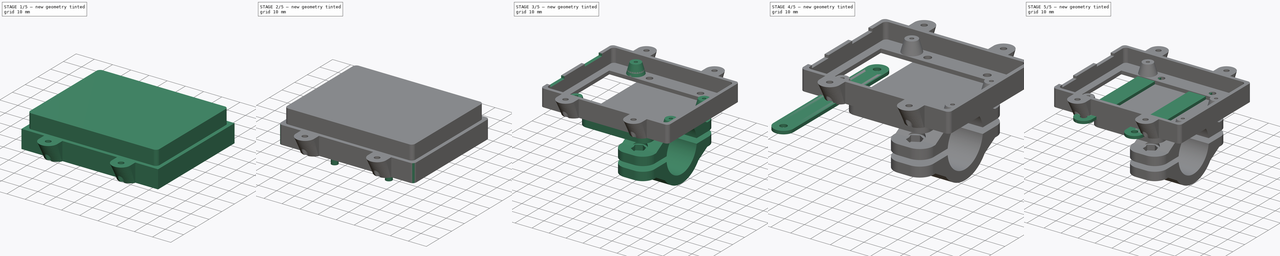
[diagram: build sequence overview — one tinted view per stage of 5, left to right]
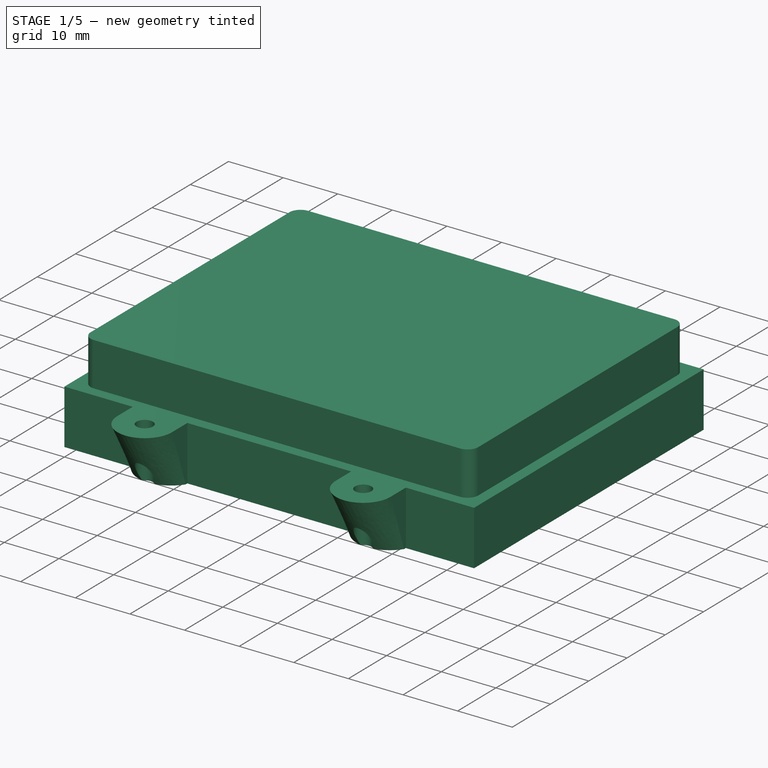
[diagram: stage 1 of 5 — iso view after this stage's code; geometry added in this stage tinted green]
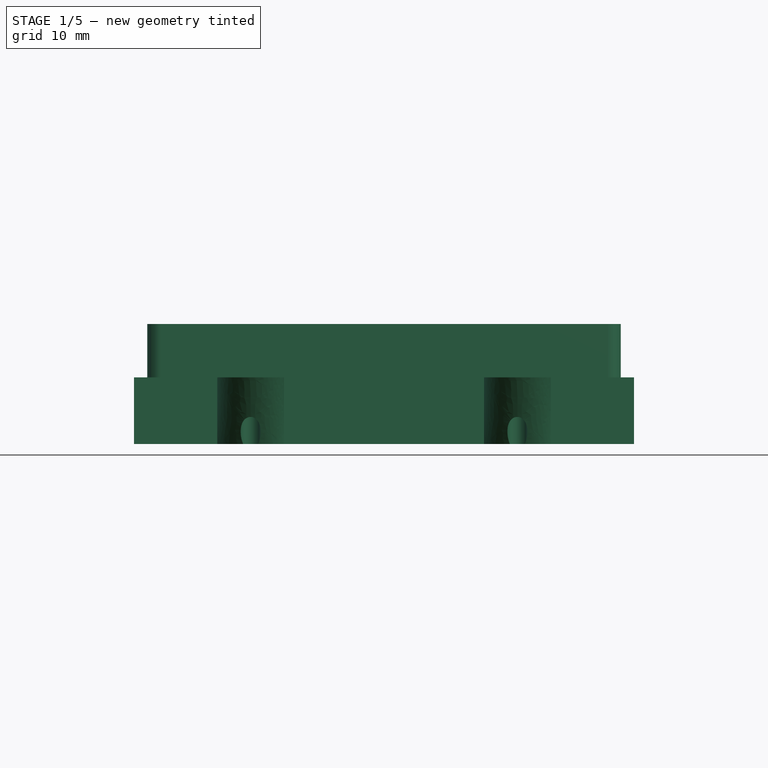
[diagram: stage 1 of 5 — front view after this stage's code; geometry added in this stage tinted green]
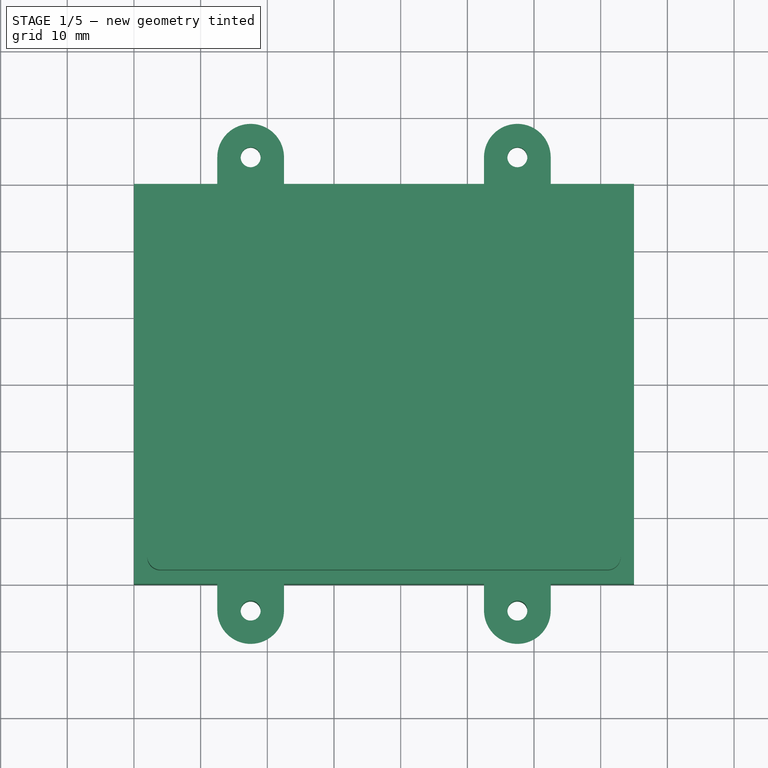
[diagram: stage 1 of 5 — top view after this stage's code; geometry added in this stage tinted green]
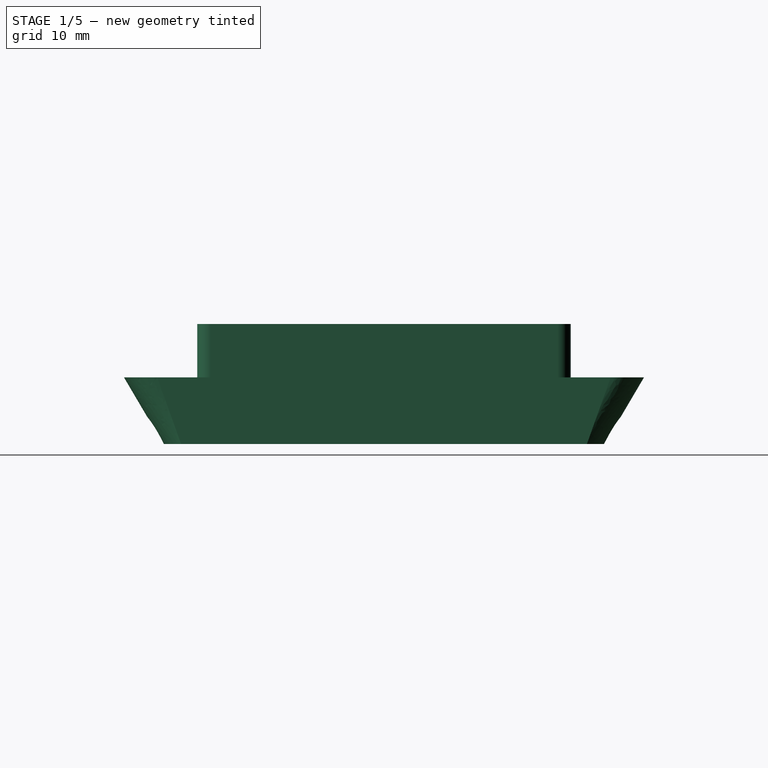
[diagram: stage 1 of 5 — right view after this stage's code; geometry added in this stage tinted green]
FCSTD DOCUMENT  (FreeCAD 0.18.4R)
Label: arduino_box_for_25mm_pipe
License: All rights reserved
LicenseURL: http://en.wikipedia.org/wiki/All_rights_reserved
objects: Part::Cylinder×12, Part::Box×8, Part::FeaturePython×8, Part::Fuse×7, Part::Cut×7, Part::MultiFuse×5, Part::Fillet×3, PartDesign::Body×3, Part::Feature×2, Sketcher::SketchObject×2, PartDesign::FeatureBase×2, Spreadsheet::Sheet×1, Part::Compound×1, Part::Cone×1, PartDesign::AdditiveLoft×1, Part::Mirroring×1
note: 64 computed .brp shape members not serialized (recipe doc carries the construction recipe); baked Part::Feature solids carry a one-line shape summary decoded from their .brp

FEATURE [Part::Box] cube
  AttacherType = Attacher::AttachEngine3D
  Height = 10
  Length = 75
  Width = 60
FEATURE [Part::Box] cube001
  AttacherType = Attacher::AttachEngine3D
  Height = 16
  Length = 71
  Placement = pos=(2,2,2) rot=(0,0,1;0rad)
  Width = 56
FEATURE [Part::Fillet] Fillet002
  Base = -> cube001
  Edges = 4 edges r=2: [Edge1,Edge3,Edge5,Edge7]
FEATURE [Sketcher::SketchObject] Sketch
  AttachmentOffset = pos=(0,0,10) rot=(0,0,1;0rad)
  MapMode = 5
  Placement = pos=(0,0,10) rot=(0,0,1;0rad)
  Support = -> [XY_Plane001]
  sketch-geometry (4):
    g0: ArcOfCircle CenterX=-2 CenterY=-2.11982e-11 CenterZ=0 NormalX=0 NormalY=0 NormalZ=1 AngleXU=0 Radius=5 StartAngle=1.5708 EndAngle=4.71239
    g1: LineSegment StartX=-2 StartY=5 StartZ=0 EndX=2 EndY=5 EndZ=0
    g2: LineSegment StartX=-2 StartY=-5 StartZ=0 EndX=2 EndY=-5 EndZ=0
    g3: LineSegment StartX=2 StartY=5 StartZ=0 EndX=2 EndY=-5 EndZ=0
  constraints (9):
    c: Horizontal(g2)
    c: Coincident(g3,g1)
    c: Coincident(g3,g2)
    c: Tangent(g1,g0) = 1.5708
    c: Tangent(g2,g0) = -1.5708
    c: Symmetric(g1,g2,g-1)
    c: Symmetric(g0,g1,g-2)
    c: DistanceY(g3,g3) = 10
    c: DistanceX(g1,g1) = 4
FEATURE [Sketcher::SketchObject] Sketch001
  MapMode = 5
  Support = -> [XY_Plane001]
  sketch-geometry (4):
    g0: ArcOfCircle CenterX=4.90004 CenterY=-4e-16 CenterZ=0 NormalX=0 NormalY=0 NormalZ=1 AngleXU=0 Radius=6.00815 StartAngle=2.15852 EndAngle=4.12466
    g1: LineSegment StartX=2 StartY=5 StartZ=0 EndX=2 EndY=-5 EndZ=0
    g2: LineSegment StartX=2 StartY=-5 StartZ=0 EndX=1.5687 EndY=-5 EndZ=0
    g3: LineSegment StartX=2 StartY=5 StartZ=0 EndX=1.5687 EndY=5 EndZ=0
  constraints (9):
    c: Symmetric(g1,g1,g-1)
    c: DistanceY(g1,g1) = 10
    c: DistanceX(g-1,g1) = 2
    c: Coincident(g2,g1)
    c: Coincident(g3,g1)
    c: Symmetric(g3,g2,g-1)
    c: Horizontal(g3)
    c: Coincident(g0,g2)
    c: Coincident(g0,g3)
FEATURE [PartDesign::AdditiveLoft] AdditiveLoft
  Closed = false
  Profile = -> Sketch
  Ruled = false
  Sections = -> [Sketch001]
FEATURE [PartDesign::Body] Body001  label="side ear"
  Group = -> [Sketch,Sketch001,AdditiveLoft]
  Origin = -> Origin001
  Tip = -> AdditiveLoft
FEATURE [PartDesign::FeatureBase] Clone001
  BaseFeature = -> Body001
FEATURE [PartDesign::Body] Body002  label="side ear clone"
  Group = -> [Clone001]
  Origin = -> Origin002
  Placement = pos=(0,0,0) rot=(0,0,-1;4.71239rad)
  Tip = -> Clone001
FEATURE [Part::Cylinder] Cylinder002  label="Cylinder"
  Angle = 360
  AttacherType = Attacher::AttachEngine3D
  Height = 20
  Placement = pos=(0,-2,0) rot=(0,0,1;0rad)
  Radius = 1.5
FEATURE [Part::Cut] Cut023015002
  Base = -> Body002
  Tool = -> Cylinder002
FEATURE [Part::FeaturePython] Array002  label="side ear clone array"  # Draft array (typed FeaturePython)
  Angle = 360
  ArrayType = 0
  Axis = (0,0,1)
  Base = -> Cut023015002
  Center = (0,0,0)
  Fuse = false
  IntervalAxis = (0,0,0)
  IntervalX = (40,0,0)
  IntervalY = (0,1,0)
  IntervalZ = (0,0,1)
  NumberPolar = 1
  NumberX = 2
  NumberY = 1
  NumberZ = 1
  Placement = pos=(17.5,-2,0) rot=(0,0,1;0rad)
FEATURE [Part::Mirroring] Part__Mirroring  label="side ear clone array (Mirror #1)"
  Base = (0,30,0)
  Normal = (0,1,0)
  Source = -> Array002
FEATURE [Part::MultiFuse] Fusion002  label="ear fusion"
  Shapes = -> [Part__Mirroring,Array002]
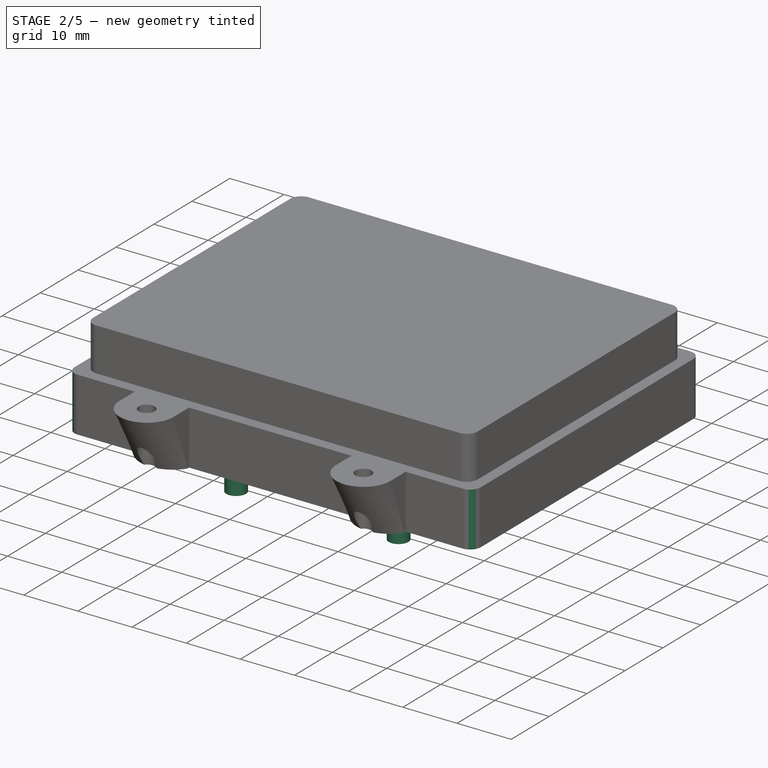
[diagram: stage 2 of 5 — iso view after this stage's code; geometry added in this stage tinted green]
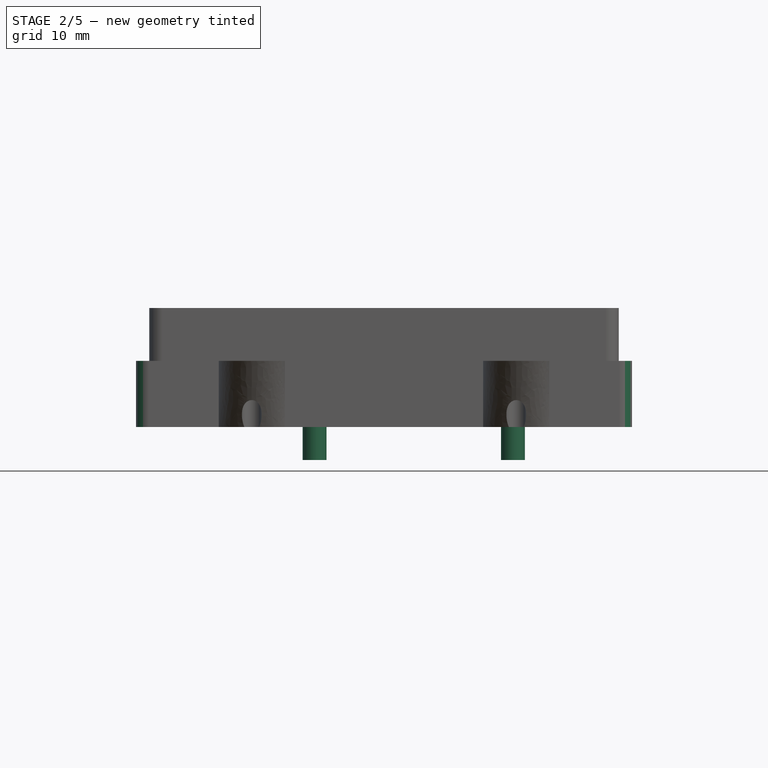
[diagram: stage 2 of 5 — front view after this stage's code; geometry added in this stage tinted green]
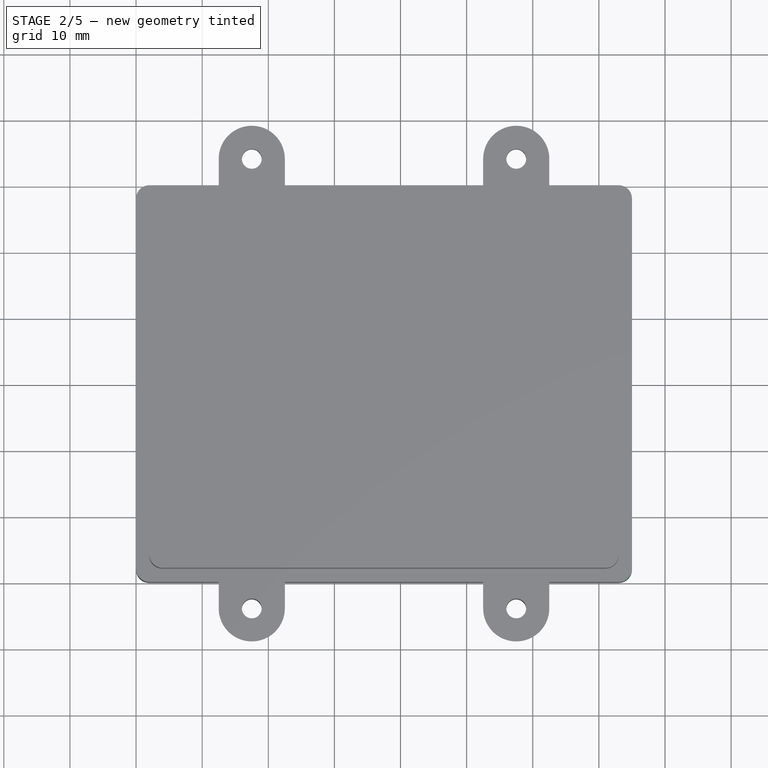
[diagram: stage 2 of 5 — top view after this stage's code; geometry added in this stage tinted green]
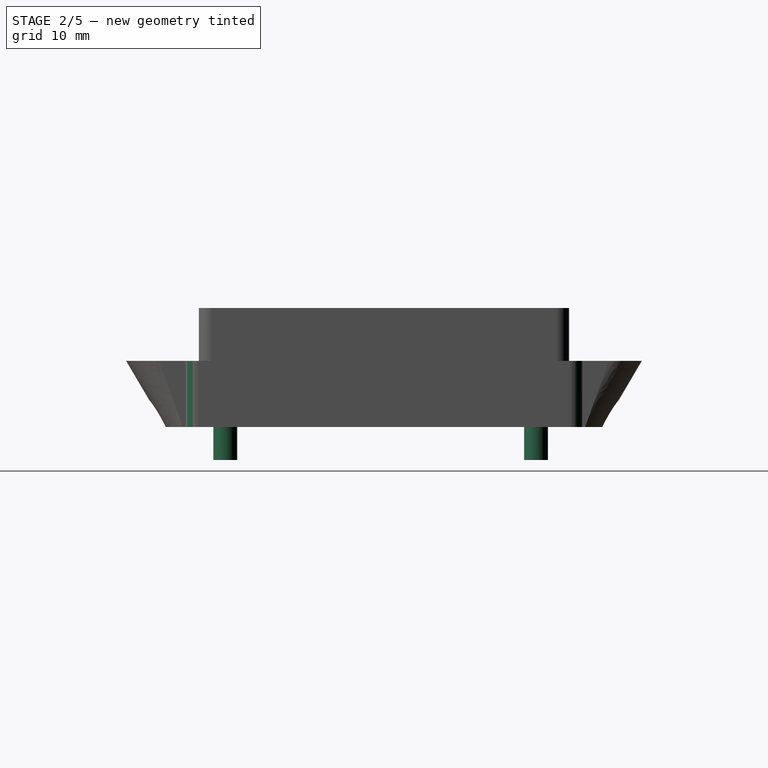
[diagram: stage 2 of 5 — right view after this stage's code; geometry added in this stage tinted green]
FEATURE [Part::Box] cube006
  AttacherType = Attacher::AttachEngine3D
  Height = 17
  Length = 58
  Placement = pos=(6.1,10.1,0) rot=(0,0,1;0rad)
  Width = 39
FEATURE [Part::Feature] Solid  label="Arduino"
  Placement = pos=(29.2,-5.1,40) rot=(0,0,1;4.71239rad)
  shape: large baked B-rep (35 MB .brp); summary skipped
FEATURE [Part::Feature] Cut023015001  label="tube block cut002"
  Placement = pos=(20,30,-14) rot=(0.57735,0.57735,0.57735;2.0944rad)
  shape: bbox 20 x 59.4 x 35.4 mm, 58 faces, 2 solids (baked)
FEATURE [Part::Box] Box  label="tube block to box plate"
  AttacherType = Attacher::AttachEngine3D
  Height = 4
  Length = 40
  Width = 59
FEATURE [Part::Fillet] Fillet  label="tube block to box plate fillet"
  Base = -> Box
  Edges = 4 edges r=5: [Edge1,Edge3,Edge5,Edge7]
FEATURE [Part::Cylinder] Cylinder  label="screw hole"
  Angle = 360
  AttacherType = Attacher::AttachEngine3D
  Height = 20
  Radius = 1.5
FEATURE [Part::FeaturePython] Array  label="screw hole array"  # Draft array (typed FeaturePython)
  Angle = 360
  ArrayType = 0
  Axis = (0,0,1)
  Base = -> Cylinder
  Center = (0,0,0)
  Fuse = false
  IntervalAxis = (0,0,0)
  IntervalX = (30,0,0)
  IntervalY = (0,47,0)
  IntervalZ = (0,0,1)
  NumberPolar = 1
  NumberX = 2
  NumberY = 2
  NumberZ = 1
  Placement = pos=(5,6,-5) rot=(0,0,1;0rad)
  expr: Placement.Base.y = p.box_tube_connector_hole_y_off
  expr: Placement.Base.x = p.box_tube_connector_hole_x_off
  expr: IntervalY.y = p.box_tube_connector_hole_y_dist
  expr: IntervalX.x = p.box_tube_connector_hole_x_dist
FEATURE [Part::Cut] Cut  label="tube block to box plate cut"
  Base = -> Fillet
  Tool = -> Array
FEATURE [Part::Cylinder] Cylinder001  label="screw hole001"
  Angle = 360
  AttacherType = Attacher::AttachEngine3D
  Height = 20
  Radius = 1.8
FEATURE [Part::FeaturePython] Array001  label="screw hole array001"  # Draft array (typed FeaturePython)
  Angle = 360
  ArrayType = 0
  Axis = (0,0,1)
  Base = -> Cylinder001
  Center = (0,0,0)
  Fuse = false
  IntervalAxis = (0,0,0)
  IntervalX = (30,0,0)
  IntervalY = (0,47,0)
  IntervalZ = (0,0,1)
  NumberPolar = 1
  NumberX = 2
  NumberY = 2
  NumberZ = 1
  Placement = pos=(27,6,-5) rot=(0,0,1;0rad)
  expr: Placement.Base.y = p.box_tube_connector_hole_y_off
  expr: Placement.Base.x = p.box_tube_connector_hole_x_off + 22
  expr: IntervalY.y = p.box_tube_connector_hole_y_dist
  expr: IntervalX.x = p.box_tube_connector_hole_x_dist
FEATURE [Part::MultiFuse] Fusion001  label="arduino box extraction fusion"
  Shapes = -> [Array001,cube006]
FEATURE [Part::Fillet] Fillet001
  Base = -> cube
  Edges = 4 edges r=2: [Edge1,Edge3,Edge5,Edge7]
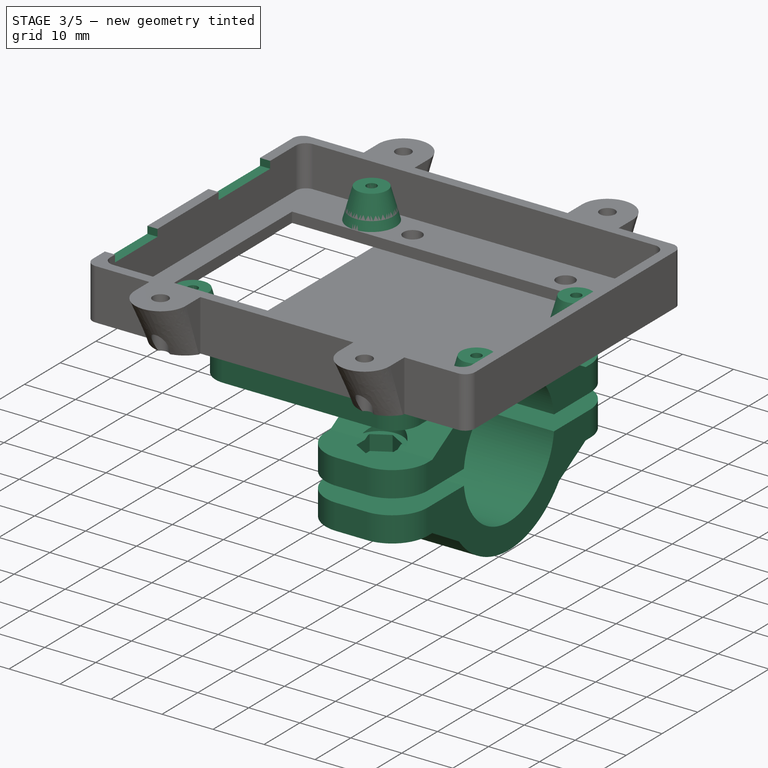
[diagram: stage 3 of 5 — iso view after this stage's code; geometry added in this stage tinted green]
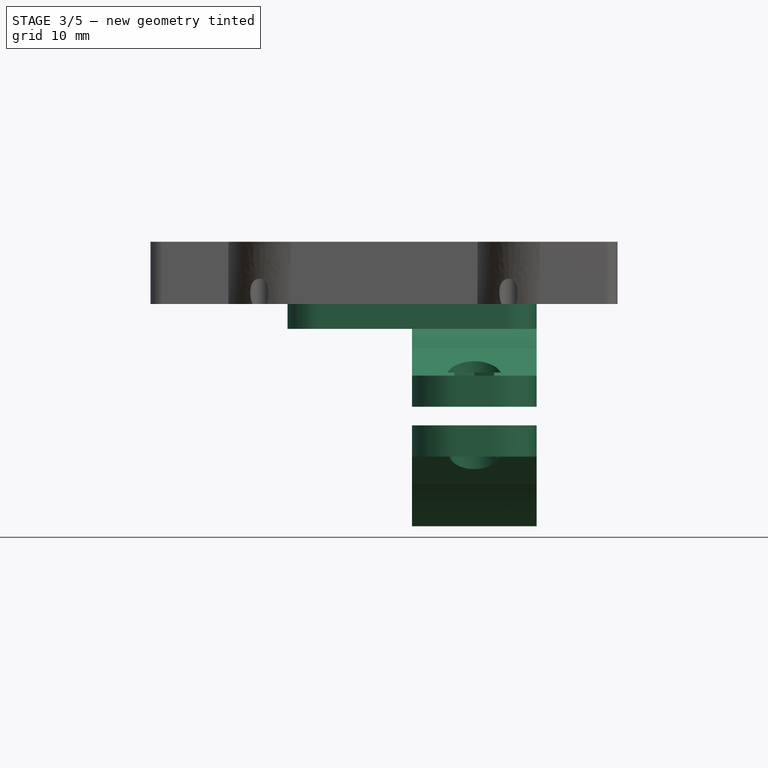
[diagram: stage 3 of 5 — front view after this stage's code; geometry added in this stage tinted green]
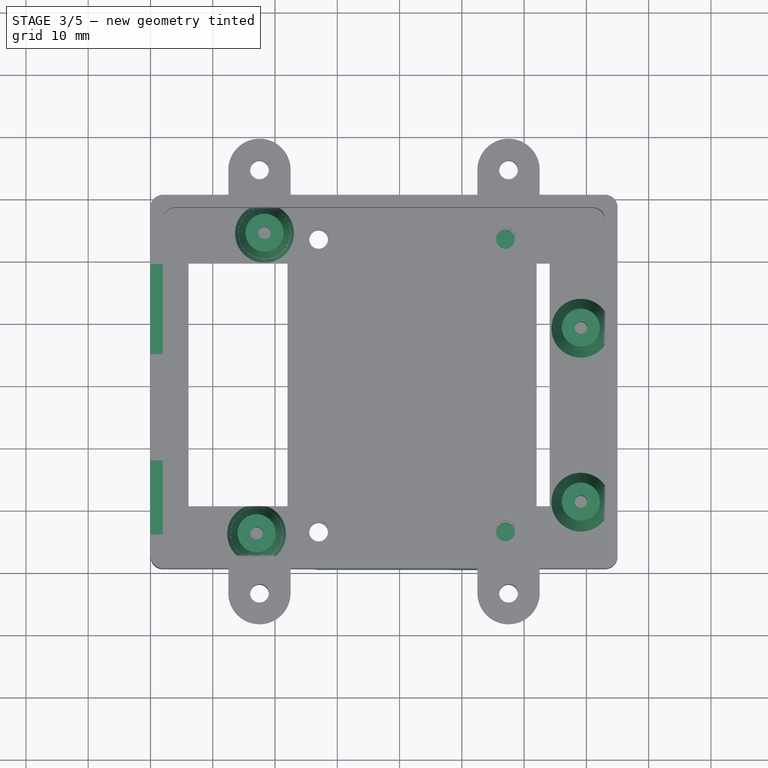
[diagram: stage 3 of 5 — top view after this stage's code; geometry added in this stage tinted green]
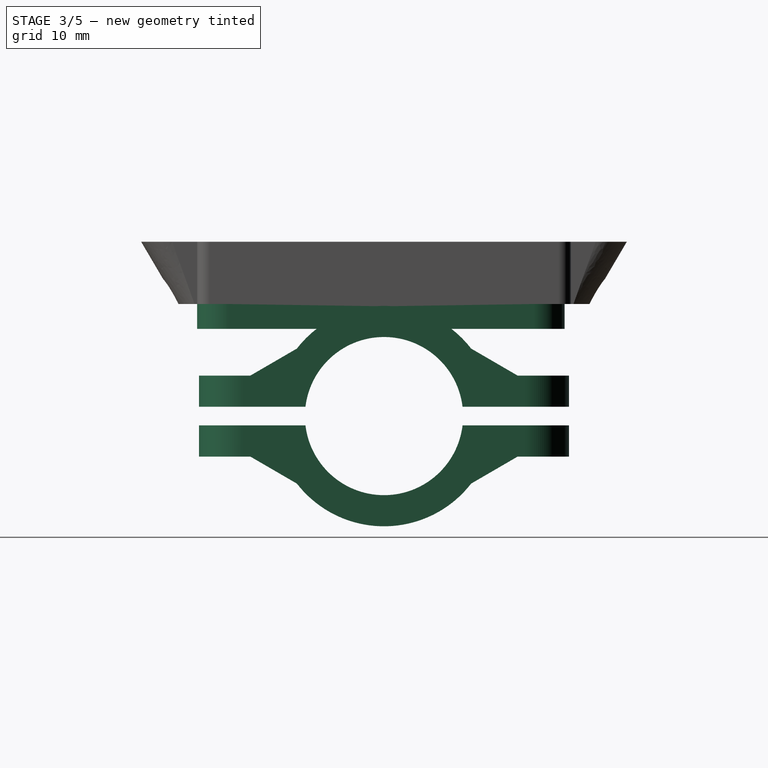
[diagram: stage 3 of 5 — right view after this stage's code; geometry added in this stage tinted green]
FEATURE [Part::Box] cube002
  AttacherType = Attacher::AttachEngine3D
  Height = 15
  Length = 2.6
  Placement = pos=(-0.5,5.4,8.6) rot=(0,0,1;0rad)
  Width = 11.89
FEATURE [Part::Box] cube003
  AttacherType = Attacher::AttachEngine3D
  Height = 15
  Length = 2.6
  Placement = pos=(-0.5,34.4,8.6) rot=(0,0,1;0rad)
  Width = 14.43
FEATURE [Part::Cylinder] cylinder009
  Angle = 360
  AttacherType = Attacher::AttachEngine3D
  Height = 8
  Radius = 1
  expr: Radius = p.hole_r
FEATURE [Spreadsheet::Sheet] Spreadsheet  label="p"
  cells = A1=hole_r; B1(hole_r)=1; A2=box_tube_connector_hole_x_dist; B2(box_tube_connector_hole_x_dist)=30; A3=box_tube_connector_hole_y_dist; B3(box_tube_connector_hole_y_dist)=47; A4=box_tube_connector_hole_y_off; B4(box_tube_connector_hole_y_off)=6; A5=box_tube_connector_hole_x_off; B5(box_tube_connector_hole_x_off)=5
FEATURE [Part::FeaturePython] Point  # WARN: FeaturePython — macro-defined, semantics opaque (R4)
  X = 18.34
  Y = 53.9
  Z = 0
FEATURE [Part::FeaturePython] Point001  # WARN: FeaturePython — macro-defined, semantics opaque (R4)
  X = 17.07
  Y = 5.64
  Z = 0
FEATURE [Part::FeaturePython] Point002  # WARN: FeaturePython — macro-defined, semantics opaque (R4)
  X = 69.14
  Y = 10.72
  Z = 0
FEATURE [Part::FeaturePython] Point003  # WARN: FeaturePython — macro-defined, semantics opaque (R4)
  X = 69.14
  Y = 38.66
  Z = 0
FEATURE [Part::Compound] Compound  label="hole points compound"
  Links = -> [Point002,Point001,Point,Point003]
FEATURE [Part::Cone] Cone
  Angle = 360
  AttacherType = Attacher::AttachEngine3D
  Height = 7
  Radius1 = 5
  Radius2 = 3.05
FEATURE [Part::Cut] difference003  label="hole with stand"
  Base = -> Cone
  Placement = pos=(13.97,2.54,0) rot=(0,0,1;0rad)
  Tool = -> cylinder009
FEATURE [Part::FeaturePython] PointArray  label="hole point array"  # WARN: FeaturePython — macro-defined, semantics opaque (R4)
  Base = -> difference003
  Count = 4
  Placement = pos=(-14,-2.5,1) rot=(0,0,1;0rad)
  PointList = -> Compound
FEATURE [Part::MultiFuse] Fusion  label="tube box connector"
  Placement = pos=(22,0,-4) rot=(0,0,1;0rad)
  Shapes = -> [Cut023015001,Cut]
FEATURE [Part::MultiFuse] union
  Shapes = -> [cube002,cube003,Fillet002]
FEATURE [Part::Cut] difference
  Base = -> Fillet001
  Tool = -> union
FEATURE [Part::MultiFuse] union003
  Shapes = -> [difference,PointArray,Fusion002]
FEATURE [Part::Cut] difference007  label="arduino box cut"
  Base = -> union003
  Tool = -> Fusion001
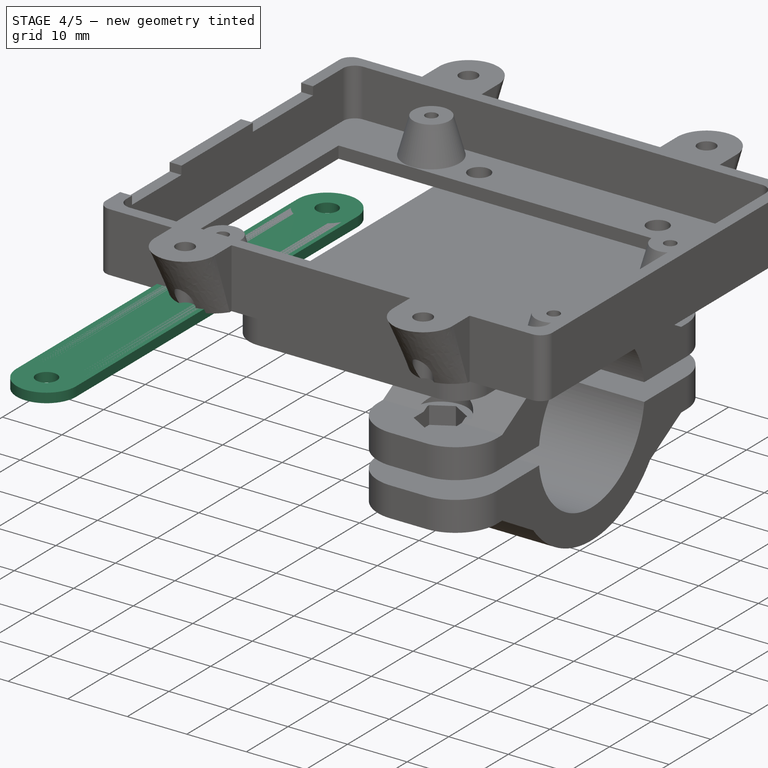
[diagram: stage 4 of 5 — iso view after this stage's code; geometry added in this stage tinted green]
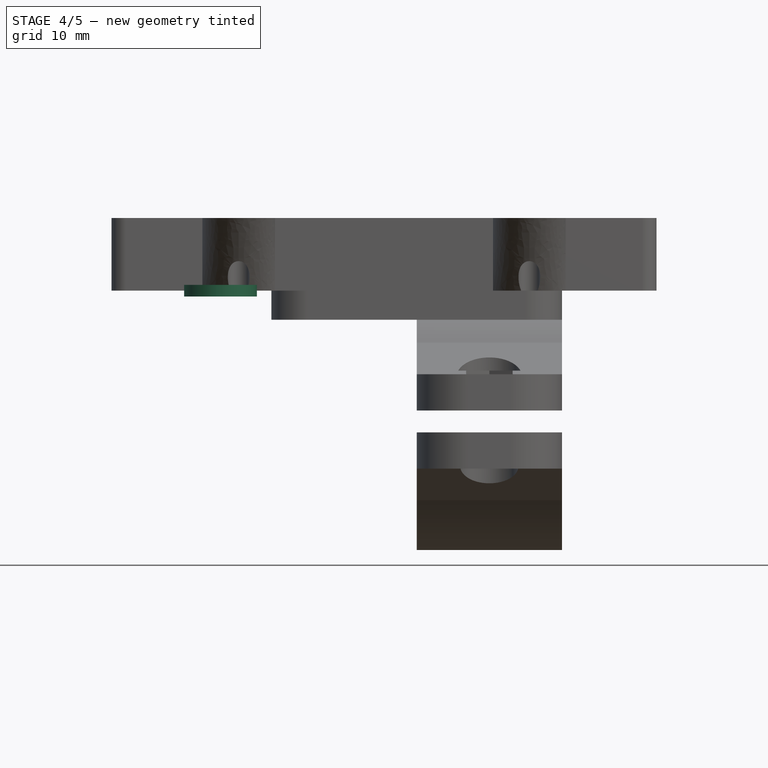
[diagram: stage 4 of 5 — front view after this stage's code; geometry added in this stage tinted green]
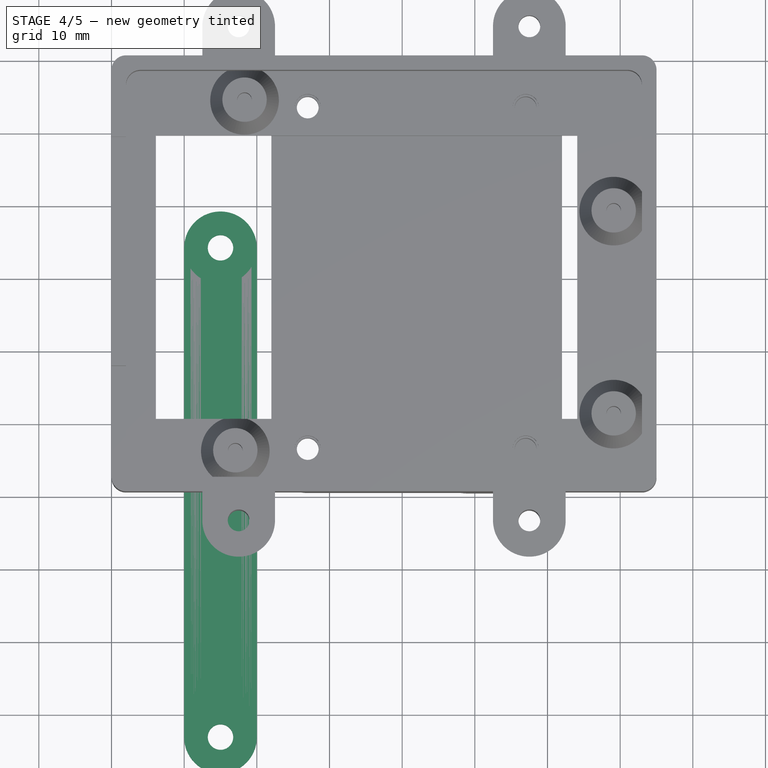
[diagram: stage 4 of 5 — top view after this stage's code; geometry added in this stage tinted green]
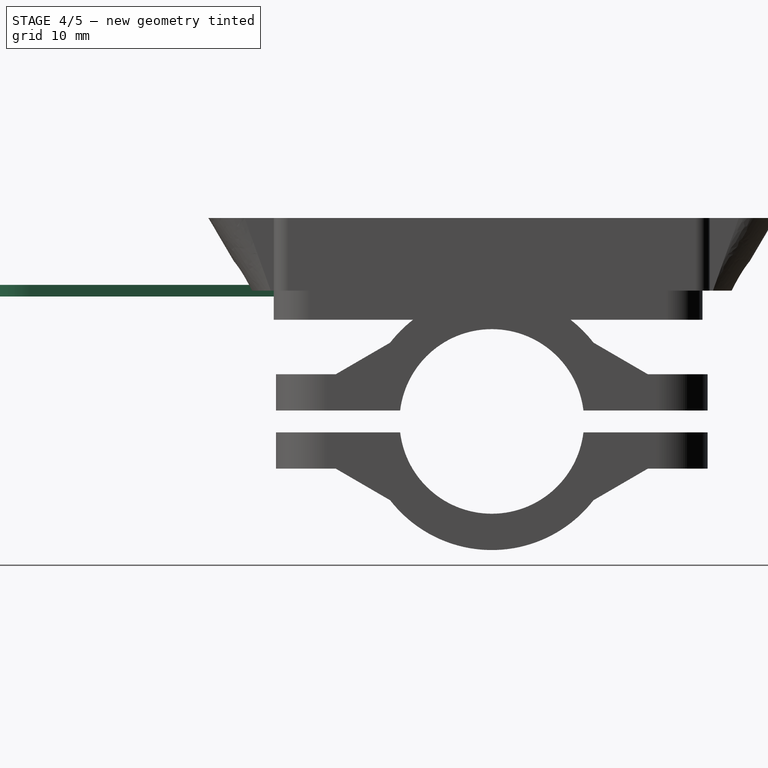
[diagram: stage 4 of 5 — right view after this stage's code; geometry added in this stage tinted green]
FEATURE [Part::Box] cube005
  AttacherType = Attacher::AttachEngine3D
  Height = 1.6
  Length = 10
  Placement = pos=(-5,-33.67,-0.8) rot=(0,0,1;0rad)
  Width = 67.34
FEATURE [Part::Cylinder] cylinder004
  Angle = 360
  AttacherType = Attacher::AttachEngine3D
  Height = 1.6
  Placement = pos=(0,-33.67,-0.8) rot=(0,0,1;0rad)
  Radius = 5
FEATURE [Part::Cylinder] cylinder005
  Angle = 360
  AttacherType = Attacher::AttachEngine3D
  Height = 1.6
  Placement = pos=(0,33.67,-0.8) rot=(0,0,1;0rad)
  Radius = 5
FEATURE [Part::Fuse] Group002
  Base = -> cylinder004
  Tool = -> cylinder005
FEATURE [Part::Fuse] union002
  Base = -> cube005
  Tool = -> Group002
FEATURE [Part::Cylinder] cylinder006
  Angle = 360
  AttacherType = Attacher::AttachEngine3D
  Height = 1.6
  Placement = pos=(0,-33.67,-0.8) rot=(0,0,1;0rad)
  Radius = 1.75
FEATURE [Part::Cylinder] cylinder007
  Angle = 360
  AttacherType = Attacher::AttachEngine3D
  Height = 1.6
  Placement = pos=(0,33.67,-0.8) rot=(0,0,1;0rad)
  Radius = 1.75
FEATURE [Part::Fuse] Group003
  Base = -> cylinder006
  Tool = -> cylinder007
FEATURE [Part::Cut] difference002
  Base = -> union002
  Placement = pos=(15,0,0) rot=(0,0,1;0rad)
  Tool = -> Group003
FEATURE [PartDesign::FeatureBase] Clone
  BaseFeature = -> difference007
FEATURE [PartDesign::Body] Body  label="arduino box cut clone"
  Group = -> [Clone]
  Origin = -> Origin
  Tip = -> Clone
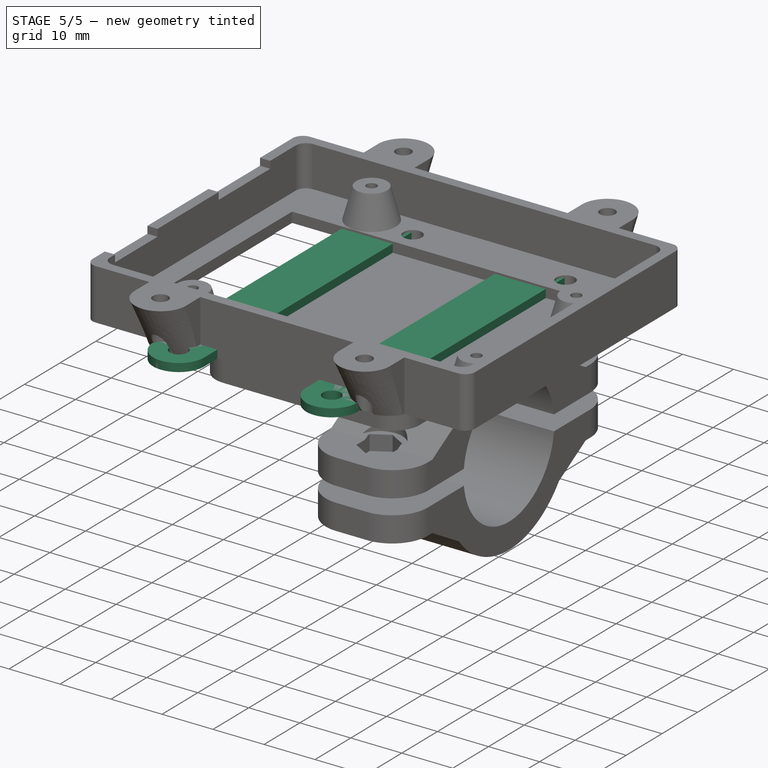
[diagram: stage 5 of 5 — iso view after this stage's code; geometry added in this stage tinted green]
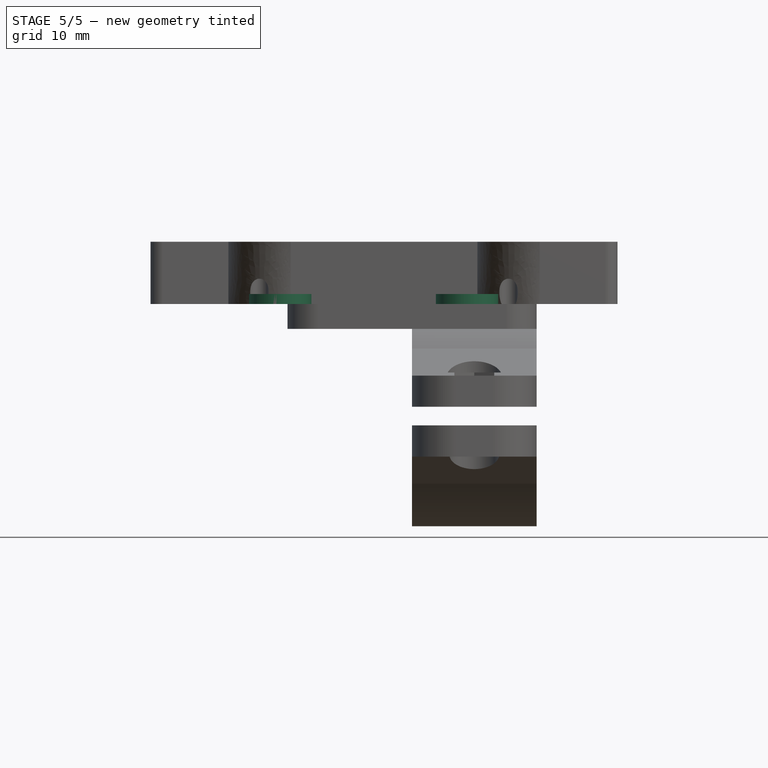
[diagram: stage 5 of 5 — front view after this stage's code; geometry added in this stage tinted green]
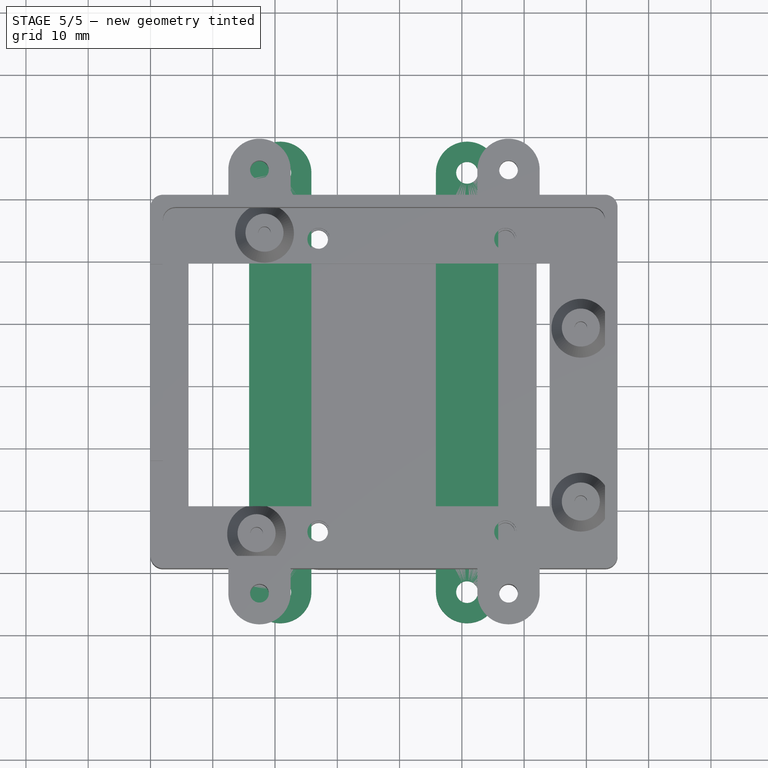
[diagram: stage 5 of 5 — top view after this stage's code; geometry added in this stage tinted green]
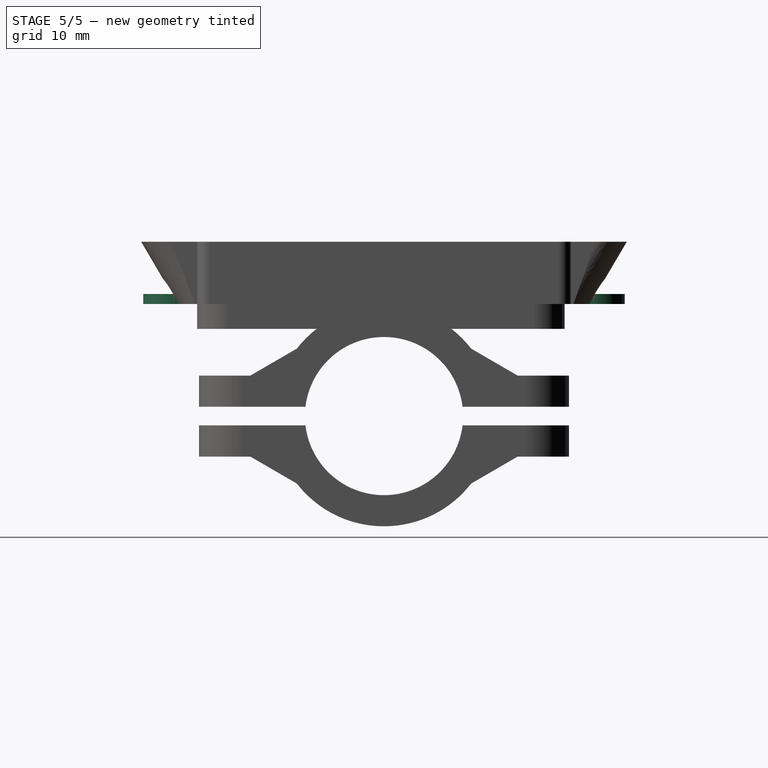
[diagram: stage 5 of 5 — right view after this stage's code; geometry added in this stage tinted green]
FEATURE [Part::Box] cube004
  AttacherType = Attacher::AttachEngine3D
  Height = 1.6
  Length = 10
  Placement = pos=(-5,-33.67,-0.8) rot=(0,0,1;0rad)
  Width = 67.34
FEATURE [Part::Cylinder] cylinder
  Angle = 360
  AttacherType = Attacher::AttachEngine3D
  Height = 1.6
  Placement = pos=(0,-33.67,-0.8) rot=(0,0,1;0rad)
  Radius = 5
FEATURE [Part::Cylinder] cylinder001
  Angle = 360
  AttacherType = Attacher::AttachEngine3D
  Height = 1.6
  Placement = pos=(0,33.67,-0.8) rot=(0,0,1;0rad)
  Radius = 5
FEATURE [Part::Fuse] Group
  Base = -> cylinder
  Tool = -> cylinder001
FEATURE [Part::Fuse] union001
  Base = -> cube004
  Tool = -> Group
FEATURE [Part::Cylinder] cylinder002
  Angle = 360
  AttacherType = Attacher::AttachEngine3D
  Height = 1.6
  Placement = pos=(0,-33.67,-0.8) rot=(0,0,1;0rad)
  Radius = 1.75
FEATURE [Part::Cylinder] cylinder003
  Angle = 360
  AttacherType = Attacher::AttachEngine3D
  Height = 1.6
  Placement = pos=(0,33.67,-0.8) rot=(0,0,1;0rad)
  Radius = 1.75
FEATURE [Part::Fuse] Group001
  Base = -> cylinder002
  Tool = -> cylinder003
FEATURE [Part::Cut] difference001
  Base = -> union001
  Placement = pos=(-15,0,0) rot=(0,0,1;0rad)
  Tool = -> Group001
FEATURE [Part::Fuse] Group004  label="ear group"
  Base = -> difference001
  Placement = pos=(35.84,30,0.8) rot=(0,0,1;0rad)
  Tool = -> difference002
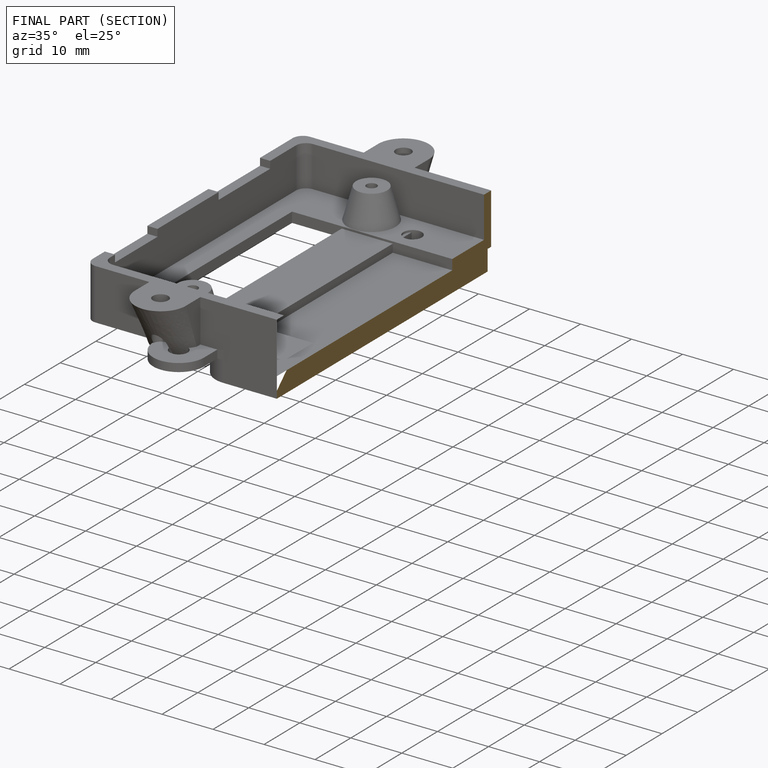
[diagram: finished part — half-section view (interior)]
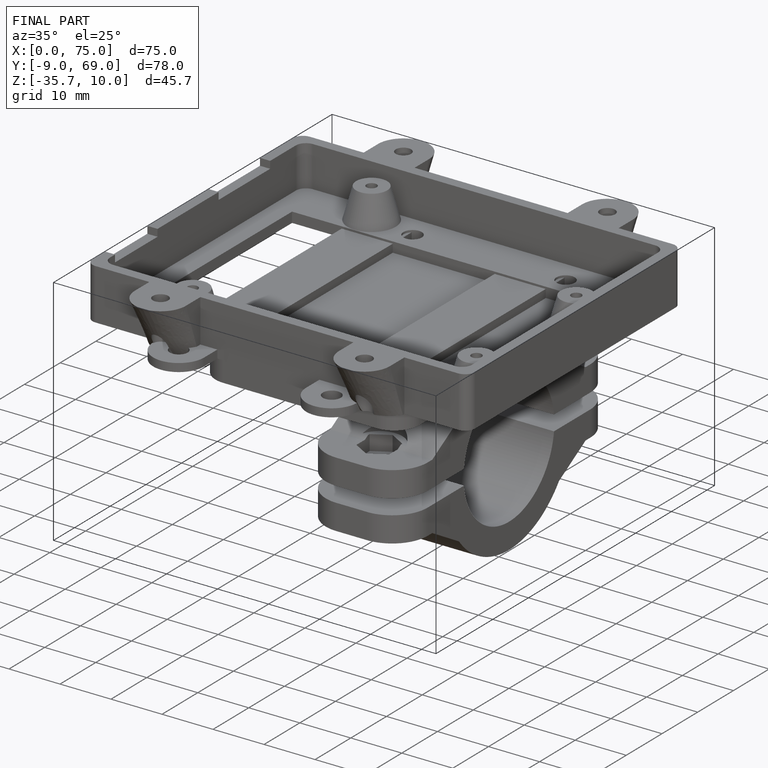
[diagram: finished part — iso view with bounding-box wireframe]
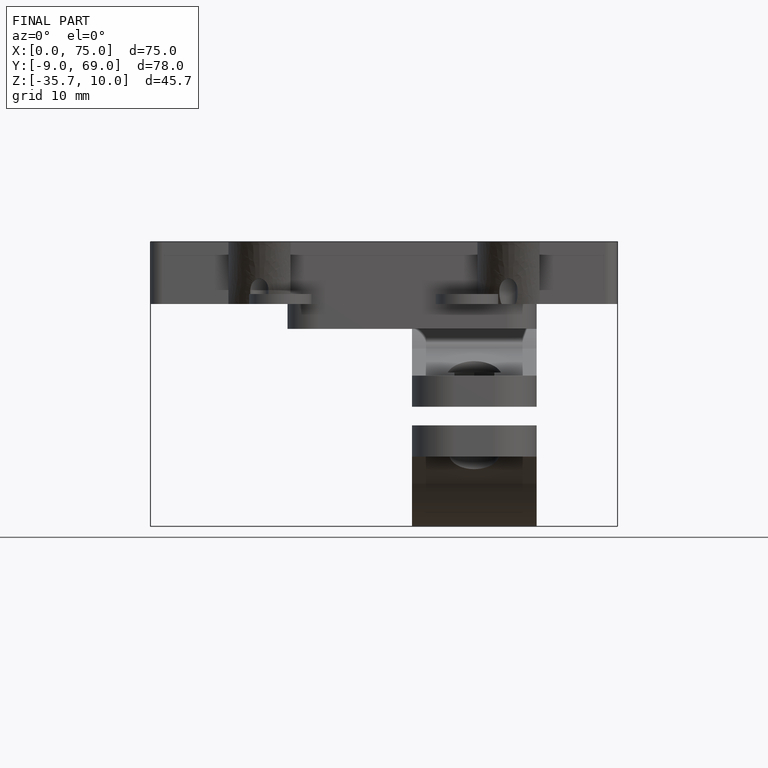
[diagram: finished part — front view with bounding-box wireframe]
